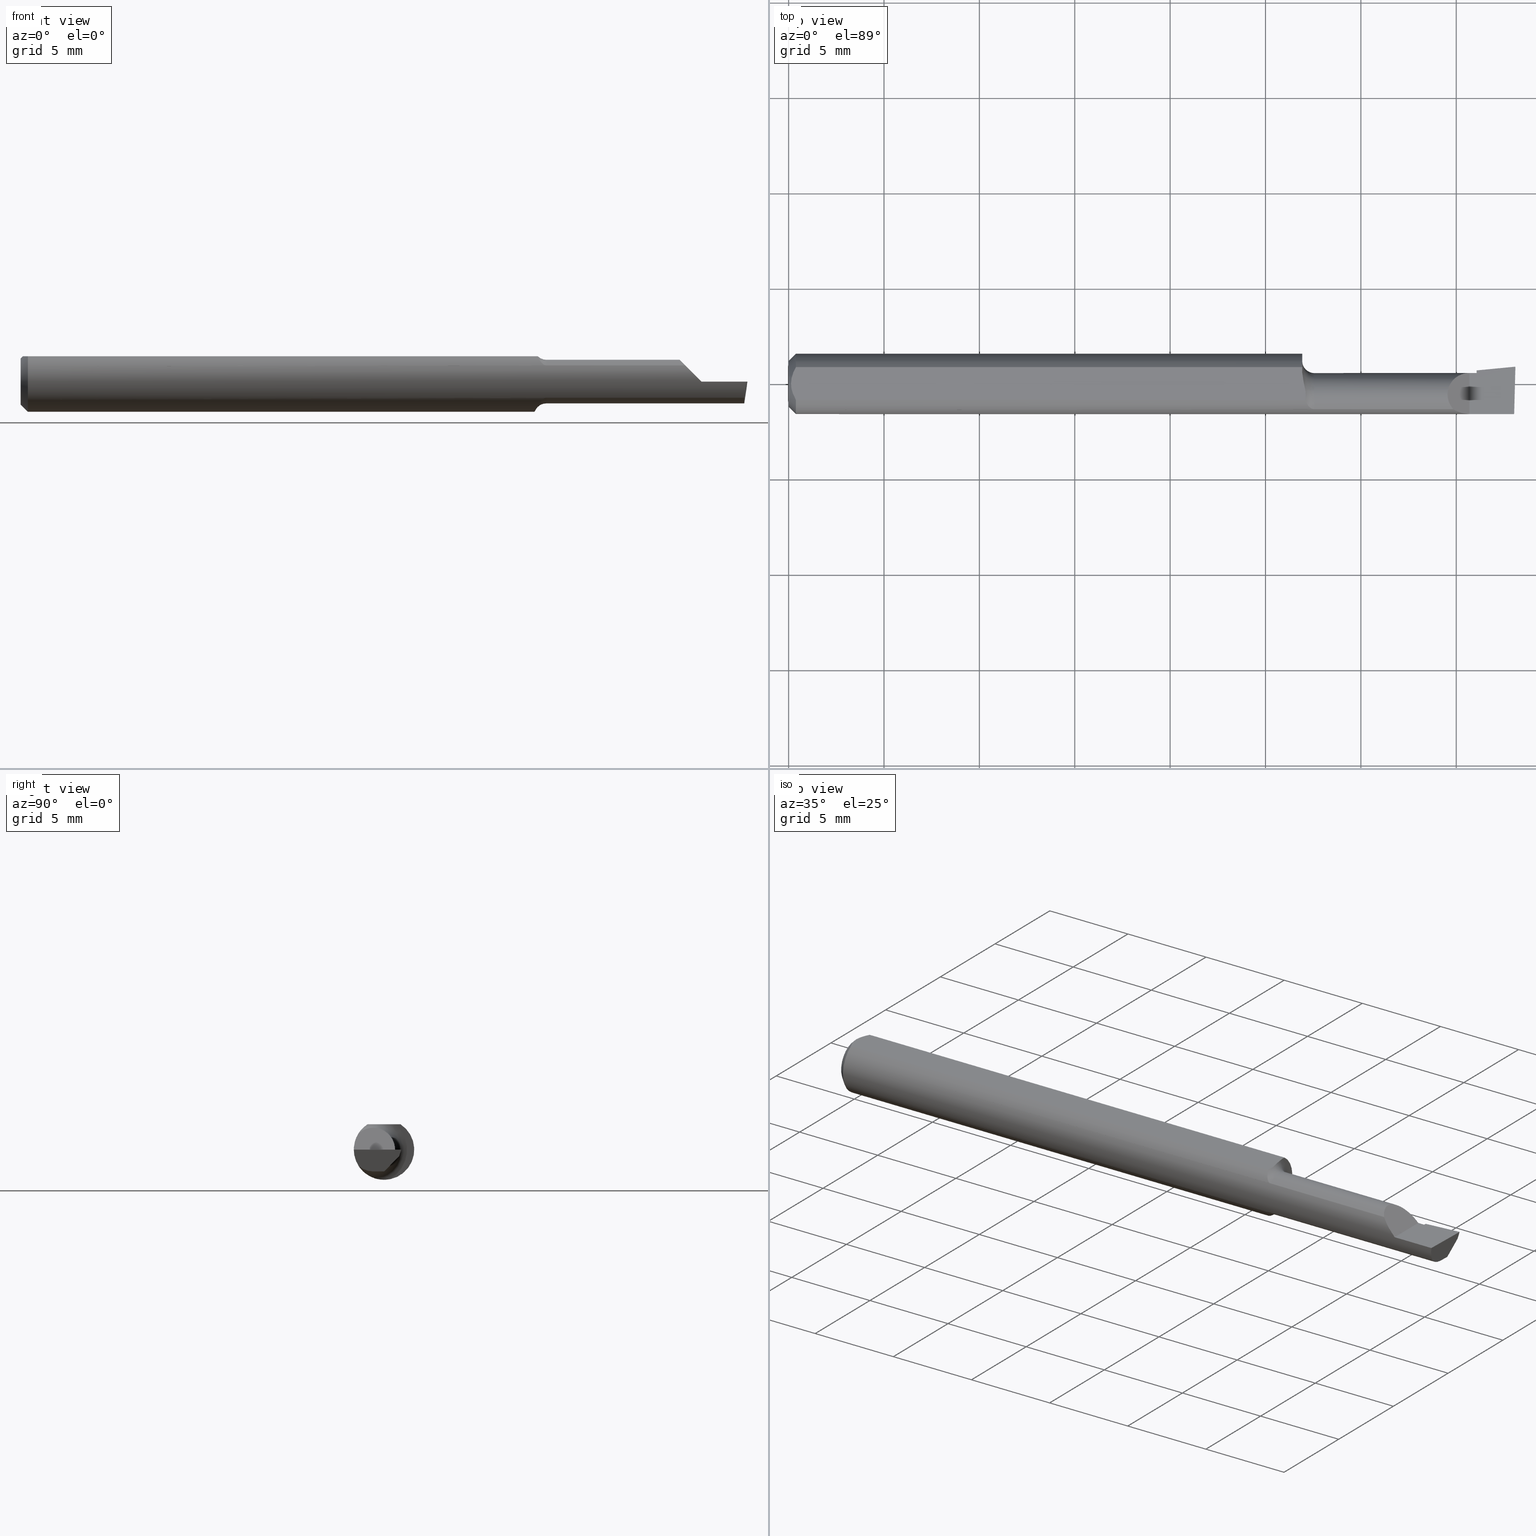
[diagram: canonical four-view strip — front | top / right | iso, engineering-drawing reading convention]
A machine part, canonical four-view strip (front | top / right | iso — engineering-drawing reading convention). The complete STEP part file that produces these views, byte-faithful:
ISO-10303-21;
HEADER;
FILE_DESCRIPTION (( 'STEP AP214' ),
    '1' );
FILE_NAME ('B100400.STEP',
    '2019-07-25T17:05:31',
    ( '' ),
    ( '' ),
    'SwSTEP 2.0',
    'SolidWorks 2018',
    '' );
FILE_SCHEMA (( 'AUTOMOTIVE_DESIGN' ));
ENDSEC;

DATA;
#1 = ORIENTED_EDGE ( 'NONE', *, *, #10, .T. ) ;
#2 = PRODUCT_CONTEXT ( 'NONE', #526, 'mechanical' ) ;
#3 = CARTESIAN_POINT ( 'NONE',  ( 1.060000000000000275, 0.01155624999999986177, -0.06126969549408177451 ) ) ;
#4 = CARTESIAN_POINT ( 'NONE',  ( 1.492946566646605078, -0.02239999999999999630, -0.04504999999999998589 ) ) ;
#5 = CARTESIAN_POINT ( 'NONE',  ( 1.420000000000000151, -0.006476468102432248429, -0.04504999999999998589 ) ) ;
#6 = CARTESIAN_POINT ( 'NONE',  ( 1.083240954672475720, -0.05267366071428582208, -0.03336177403790606399 ) ) ;
#7 = DIRECTION ( 'NONE',  ( 1.000000000000000000, 0.0000000000000000000, 0.0000000000000000000 ) ) ;
#8 = CARTESIAN_POINT ( 'NONE',  ( 0.006057557792978140489, -0.01187252718384441616, 0.05234999999999998682 ) ) ;
#9 = ORIENTED_EDGE ( 'NONE', *, *, #261, .F. ) ;
#10 = EDGE_CURVE ( 'NONE', #38, #589, #593, .T. ) ;
#11 = VERTEX_POINT ( 'NONE', #4 ) ;
#12 =( NAMED_UNIT ( * ) SI_UNIT ( $, .STERADIAN. ) SOLID_ANGLE_UNIT ( ) );
#13 =( BOUNDED_CURVE ( )  B_SPLINE_CURVE ( 3, ( #307, #83, #355, #220 ),
 .UNSPECIFIED., .F., .T. ) 
 B_SPLINE_CURVE_WITH_KNOTS ( ( 4, 4 ),
 ( 5.756326750816668003, 6.493234751459600496 ),
 .UNSPECIFIED. ) 
 CURVE ( )  GEOMETRIC_REPRESENTATION_ITEM ( )  RATIONAL_B_SPLINE_CURVE ( ( 1.000000000000000000, 0.9552568590268901705, 0.9552568590268901705, 1.000000000000000000 ) ) 
 REPRESENTATION_ITEM ( '' )  );
#14 = ORIENTED_EDGE ( 'NONE', *, *, #493, .F. ) ;
#15 = DIRECTION ( 'NONE',  ( -1.000000000000000000, -5.691349986800549142E-18, -0.0000000000000000000 ) ) ;
#16 = CARTESIAN_POINT ( 'NONE',  ( 1.420000000000000151, 0.02794687614419681318, 0.0000000000000000000 ) ) ;
#17 = DIRECTION ( 'NONE',  ( 0.0000000000000000000, -1.000000000000000000, 0.0000000000000000000 ) ) ;
#18 = SHAPE_DEFINITION_REPRESENTATION ( #604, #591 ) ;
#19 = VECTOR ( 'NONE', #244, 39.37007874015748854 ) ;
#20 = ORIENTED_EDGE ( 'NONE', *, *, #261, .T. ) ;
#21 = ORIENTED_EDGE ( 'NONE', *, *, #450, .F. ) ;
#22 = AXIS2_PLACEMENT_3D ( 'NONE', #312, #547, #81 ) ;
#23 = CARTESIAN_POINT ( 'NONE',  ( 1.060000000000000275, 0.0000000000000000000, 0.0000000000000000000 ) ) ;
#24 = CARTESIAN_POINT ( 'NONE',  ( 1.420000000000000151, -0.02239999999999999630, 0.0000000000000000000 ) ) ;
#25 = EDGE_CURVE ( 'NONE', #367, #113, #505, .T. ) ;
#26 = CARTESIAN_POINT ( 'NONE',  ( 1.085000000000000187, -0.02239999999999999977, 0.0000000000000000000 ) ) ;
#27 = VECTOR ( 'NONE', #481, 39.37007874015748143 ) ;
#28 = DIRECTION ( 'NONE',  ( 5.691349986800549142E-18, -1.000000000000000000, 7.598598113218357399E-17 ) ) ;
#29 = AXIS2_PLACEMENT_3D ( 'NONE', #170, #393, #266 ) ;
#30 = CIRCLE ( 'NONE', #129, 0.04734999999999965625 ) ;
#31 = ORIENTED_EDGE ( 'NONE', *, *, #576, .T. ) ;
#32 = ORIENTED_EDGE ( 'NONE', *, *, #406, .F. ) ;
#33 = CARTESIAN_POINT ( 'NONE',  ( 1.085000000000000187, -0.02239999999999999630, 0.0000000000000000000 ) ) ;
#34 = B_SPLINE_CURVE_WITH_KNOTS ( 'NONE', 3,
 ( #529, #162, #475, #378, #533, #107, #528, #62, #425, #373 ),
 .UNSPECIFIED., .F., .F.,
 ( 4, 2, 2, 2, 4 ),
 ( 3.797231421916798275E-07, 0.0004333373953855909145, 0.0006498162315072879497, 0.0007580556495681328895, 0.0008662950676289779377 ),
 .UNSPECIFIED. ) ;
#35 =( NAMED_UNIT ( * ) SI_UNIT ( $, .STERADIAN. ) SOLID_ANGLE_UNIT ( ) );
#36 = PRESENTATION_LAYER_ASSIGNMENT (  '', '', ( #558 ) ) ;
#37 = DIRECTION ( 'NONE',  ( -1.000000000000000000, -0.0000000000000000000, -0.0000000000000000000 ) ) ;
#38 = VERTEX_POINT ( 'NONE', #318 ) ;
#39 = CARTESIAN_POINT ( 'NONE',  ( 1.420000000000000151, 0.02265000000000000346, 1.836970198721031660E-16 ) ) ;
#40 = ADVANCED_FACE ( 'NONE', ( #442 ), #330, .F. ) ;
#41 = CARTESIAN_POINT ( 'NONE',  ( 1.497433779686218935, -0.06235000000000005121, 3.231995301756471648E-19 ) ) ;
#42 = LINE ( 'NONE', #487, #77 ) ;
#43 = ORIENTED_EDGE ( 'NONE', *, *, #357, .F. ) ;
#44 = ORIENTED_EDGE ( 'NONE', *, *, #140, .T. ) ;
#45 = VERTEX_POINT ( 'NONE', #55 ) ;
#46 = CARTESIAN_POINT ( 'NONE',  ( 1.060684336333183486, 0.01400540109987310697, 0.05234999999999998682 ) ) ;
#47 = PLANE ( 'NONE',  #516 ) ;
#48 =( GEOMETRIC_REPRESENTATION_CONTEXT ( 3 ) GLOBAL_UNCERTAINTY_ASSIGNED_CONTEXT ( ( #454 ) ) GLOBAL_UNIT_ASSIGNED_CONTEXT ( ( #371, #288, #12 ) ) REPRESENTATION_CONTEXT ( 'NONE', 'WORKASPACE' ) );
#49 = CARTESIAN_POINT ( 'NONE',  ( 1.420000000000000151, -0.2500000000000000555, 9.797174393178828616E-18 ) ) ;
#50 = CARTESIAN_POINT ( 'NONE',  ( 1.405000000000000249, -0.2500000000000000555, 1.163414459189985436E-17 ) ) ;
#51 = EDGE_CURVE ( 'NONE', #38, #11, #474, .T. ) ;
#52 = FACE_OUTER_BOUND ( 'NONE', #324, .T. ) ;
#53 = FILL_AREA_STYLE_COLOUR ( '', #440 ) ;
#54 = ORIENTED_EDGE ( 'NONE', *, *, #434, .F. ) ;
#55 = CARTESIAN_POINT ( 'NONE',  ( 0.01500000000000000465, 0.0000000000000000000, -0.06235000000000000264 ) ) ;
#56 = CARTESIAN_POINT ( 'NONE',  ( 1.072612635401776870, -0.04600867268841651869, -0.04219264322731248323 ) ) ;
#57 = ORIENTED_EDGE ( 'NONE', *, *, #212, .F. ) ;
#58 = DIRECTION ( 'NONE',  ( 5.691349986800549142E-18, -1.000000000000000000, 0.0000000000000000000 ) ) ;
#59 = DIRECTION ( 'NONE',  ( -1.000000000000000000, -0.0000000000000000000, -0.0000000000000000000 ) ) ;
#60 = AXIS2_PLACEMENT_3D ( 'NONE', #16, #201, #204 ) ;
#61 = FILL_AREA_STYLE ('',( #53 ) ) ;
#62 = CARTESIAN_POINT ( 'NONE',  ( 1.082134555967766865, -0.05240678568573016449, 0.03378794548805856557 ) ) ;
#63 = LINE ( 'NONE', #49, #592 ) ;
#64 = FACE_OUTER_BOUND ( 'NONE', #193, .T. ) ;
#65 = ORIENTED_EDGE ( 'NONE', *, *, #348, .T. ) ;
#66 = DIRECTION ( 'NONE',  ( 0.0000000000000000000, 0.0000000000000000000, -1.000000000000000000 ) ) ;
#67 = DIRECTION ( 'NONE',  ( 0.7071067811865395791, 8.659560562355030233E-17, 0.7071067811865554553 ) ) ;
#68 = ORIENTED_EDGE ( 'NONE', *, *, #348, .F. ) ;
#69 = CARTESIAN_POINT ( 'NONE',  ( 2.249639673992788601E-32, -0.06234999999999999570, 1.836970198721030427E-16 ) ) ;
#70 = ORIENTED_EDGE ( 'NONE', *, *, #299, .F. ) ;
#71 = AXIS2_PLACEMENT_3D ( 'NONE', #50, #514, #232 ) ;
#72 = EDGE_LOOP ( 'NONE', ( #341, #57, #394 ) ) ;
#73 = DIRECTION ( 'NONE',  ( -0.06894566448119622548, 0.7160281025913035613, -0.6946583704589933683 ) ) ;
#74 = EDGE_CURVE ( 'NONE', #551, #455, #346, .T. ) ;
#75 = CARTESIAN_POINT ( 'NONE',  ( 0.01500000000000000465, 0.0000000000000000000, 0.0000000000000000000 ) ) ;
#76 = UNCERTAINTY_MEASURE_WITH_UNIT (LENGTH_MEASURE( 1.000000000000000082E-05 ), #449, 'distance_accuracy_value', 'NONE');
#77 = VECTOR ( 'NONE', #385, 39.37007874015748143 ) ;
#78 = DIRECTION ( 'NONE',  ( 5.691349986800549142E-18, -1.000000000000000000, 0.0000000000000000000 ) ) ;
#79 = ORIENTED_EDGE ( 'NONE', *, *, #398, .T. ) ;
#80 = AXIS2_PLACEMENT_3D ( 'NONE', #23, #197, #430 ) ;
#81 = DIRECTION ( 'NONE',  ( 0.0000000000000000000, -1.000000000000000000, 4.268512490100411895E-17 ) ) ;
#82 = AXIS2_PLACEMENT_3D ( 'NONE', #33, #268, #78 ) ;
#83 = CARTESIAN_POINT ( 'NONE',  ( 1.492874371667014088, -0.04428776192107811843, -0.04097143695815294584 ) ) ;
#84 = VERTEX_POINT ( 'NONE', #518 ) ;
#85 = ORIENTED_EDGE ( 'NONE', *, *, #277, .F. ) ;
#86 = SURFACE_SIDE_STYLE ('',( #231 ) ) ;
#87 = DIRECTION ( 'NONE',  ( 0.0000000000000000000, 0.0000000000000000000, 1.000000000000000000 ) ) ;
#88 = CIRCLE ( 'NONE', #383, 0.06235000000000000264 ) ;
#89 = PRODUCT ( 'B100400', 'B100400', '', ( #2 ) ) ;
#90 = ORIENTED_EDGE ( 'NONE', *, *, #357, .T. ) ;
#91 = ADVANCED_FACE ( 'NONE', ( #543 ), #280, .F. ) ;
#92 = CARTESIAN_POINT ( 'NONE',  ( 1.067029704074272445, -0.01497150789875727889, 0.05235000000000000764 ) ) ;
#93 = VERTEX_POINT ( 'NONE', #523 ) ;
#94 = CLOSED_SHELL ( 'NONE', ( #414, #187, #515, #403, #601, #314, #409, #91, #137, #276, #418, #281, #504, #451, #317, #40, #559 ) ) ;
#95 = PRODUCT_DEFINITION ( 'UNKNOWN', '', #233, #527 ) ;
#96 = DIRECTION ( 'NONE',  ( -1.000000000000000000, -5.691349986800549142E-18, -0.0000000000000000000 ) ) ;
#97 = CARTESIAN_POINT ( 'NONE',  ( 1.509953961983671933, 0.03660845752520203861, 0.0000000000000000000 ) ) ;
#98 = DIRECTION ( 'NONE',  ( -0.9953961983671800740, -0.09584575252021031166, 0.0000000000000000000 ) ) ;
#99 = DIRECTION ( 'NONE',  ( 0.1219104985252536522, 0.0000000000000000000, 0.9925410975618713660 ) ) ;
#100 = FACE_OUTER_BOUND ( 'NONE', #596, .T. ) ;
#101 = ORIENTED_EDGE ( 'NONE', *, *, #376, .F. ) ;
#102 = ORIENTED_EDGE ( 'NONE', *, *, #123, .F. ) ;
#103 = DIMENSIONAL_EXPONENTS ( 1.000000000000000000, 0.0000000000000000000, 0.0000000000000000000, 0.0000000000000000000, 0.0000000000000000000, 0.0000000000000000000, 0.0000000000000000000 ) ;
#104 = AXIS2_PLACEMENT_3D ( 'NONE', #512, #96, #279 ) ;
#105 = CARTESIAN_POINT ( 'NONE',  ( 0.004999999999989931769, 7.898418181085889318E-16, 0.05235000000000000070 ) ) ;
#106 = CARTESIAN_POINT ( 'NONE',  ( 1.068132745576696019, -0.03943215935316551901, -0.04868886658133501216 ) ) ;
#107 = CARTESIAN_POINT ( 'NONE',  ( 1.078587721903973895, -0.05102224570557683386, 0.03585204334870999848 ) ) ;
#108 = EDGE_CURVE ( 'NONE', #353, #258, #127, .T. ) ;
#109 = PRESENTATION_STYLE_ASSIGNMENT (( #445 ) ) ;
#110 = CARTESIAN_POINT ( 'NONE',  ( 0.009669996313769784607, 0.02323004575534281385, 0.05234999999999998682 ) ) ;
#111 = LINE ( 'NONE', #293, #352 ) ;
#112 = CARTESIAN_POINT ( 'NONE',  ( 1.492525117049605665, -0.2498042633013223268, 9.154091479201563202E-19 ) ) ;
#113 = VERTEX_POINT ( 'NONE', #3 ) ;
#114 = DIRECTION ( 'NONE',  ( 0.9953961983671786307, 0.09584575252022466130, -1.219008768213809603E-16 ) ) ;
#115 = AXIS2_PLACEMENT_3D ( 'NONE', #541, #73, #584 ) ;
#116 = CARTESIAN_POINT ( 'NONE',  ( 1.420000000000000151, -0.02239999999999999630, -0.04504999999999998589 ) ) ;
#117 = CARTESIAN_POINT ( 'NONE',  ( 1.500000000000000222, -0.02239999999999999630, -0.04504999999999998589 ) ) ;
#118 = UNCERTAINTY_MEASURE_WITH_UNIT (LENGTH_MEASURE( 1.000000000000000082E-05 ), #156, 'distance_accuracy_value', 'NONE');
#119 = AXIS2_PLACEMENT_3D ( 'NONE', #498, #224, #134 ) ;
#120 = VERTEX_POINT ( 'NONE', #145 ) ;
#121 = DIRECTION ( 'NONE',  ( 0.0000000000000000000, 0.0000000000000000000, -1.000000000000000000 ) ) ;
#122 = DIRECTION ( 'NONE',  ( 3.962974135542377331E-18, -0.6963153109074924352, -0.7177360153954949196 ) ) ;
#123 = EDGE_CURVE ( 'NONE', #191, #93, #30, .T. ) ;
#124 = CARTESIAN_POINT ( 'NONE',  ( 1.060000000000000275, 0.1123499999999999915, 0.05234999999999998682 ) ) ;
#125 = EDGE_CURVE ( 'NONE', #438, #422, #265, .T. ) ;
#126 = CARTESIAN_POINT ( 'NONE',  ( 1.405000000000000249, 0.02264999999999992714, 1.163414459189985436E-17 ) ) ;
#127 =( BOUNDED_CURVE ( )  B_SPLINE_CURVE ( 3, ( #563, #283, #147, #323 ),
 .UNSPECIFIED., .F., .T. ) 
 B_SPLINE_CURVE_WITH_KNOTS ( ( 4, 4 ),
 ( 5.546277306536651963, 7.853981633974482790 ),
 .UNSPECIFIED. ) 
 CURVE ( )  GEOMETRIC_REPRESENTATION_ITEM ( )  RATIONAL_B_SPLINE_CURVE ( ( 1.000000000000000000, 0.6033122017619988453, 0.6033122017619988453, 1.000000000000000000 ) ) 
 REPRESENTATION_ITEM ( '' )  );
#128 = ORIENTED_EDGE ( 'NONE', *, *, #199, .T. ) ;
#129 = AXIS2_PLACEMENT_3D ( 'NONE', #561, #59, #150 ) ;
#130 = EDGE_CURVE ( 'NONE', #84, #120, #564, .T. ) ;
#131 = FACE_OUTER_BOUND ( 'NONE', #405, .T. ) ;
#132 = VECTOR ( 'NONE', #166, 39.37007874015748143 ) ;
#133 = ORIENTED_EDGE ( 'NONE', *, *, #496, .T. ) ;
#134 = DIRECTION ( 'NONE',  ( -1.000000000000000000, 0.0000000000000000000, 1.224646799147353947E-16 ) ) ;
#135 = CARTESIAN_POINT ( 'NONE',  ( 1.060000000000000275, -0.02239999999999999977, 0.0000000000000000000 ) ) ;
#136 = CARTESIAN_POINT ( 'NONE',  ( 1.500188977433808635, 0.03611059946466778359, 0.001440373173037835797 ) ) ;
#137 = ADVANCED_FACE ( 'NONE', ( #452 ), #47, .F. ) ;
#138 = CARTESIAN_POINT ( 'NONE',  ( 1.063640393495457026, 0.0002918085034138360166, 0.05234999999999998682 ) ) ;
#139 = VECTOR ( 'NONE', #497, 39.37007874015748143 ) ;
#140 = EDGE_CURVE ( 'NONE', #411, #179, #339, .T. ) ;
#141 = DIRECTION ( 'NONE',  ( 1.671023757235065686E-18, -0.2936076258024062913, -0.9559260233253795702 ) ) ;
#142 = VECTOR ( 'NONE', #416, 39.37007874015748143 ) ;
#143 = VECTOR ( 'NONE', #568, 39.37007874015748854 ) ;
#144 = ORIENTED_EDGE ( 'NONE', *, *, #496, .F. ) ;
#145 = CARTESIAN_POINT ( 'NONE',  ( 1.420000000000000151, 0.02364685013702381988, -0.01400000000000000203 ) ) ;
#146 = AXIS2_PLACEMENT_3D ( 'NONE', #97, #555, #602 ) ;
#147 = CARTESIAN_POINT ( 'NONE',  ( 1.359483931624303699, 0.02264999999999997571, 0.04551606837569584230 ) ) ;
#148 = B_SPLINE_CURVE_WITH_KNOTS ( 'NONE', 3,
 ( #270, #503, #46, #186, #181, #138, #180, #600, #228, #560, #92, #501, #605, #272 ),
 .UNSPECIFIED., .F., .F.,
 ( 4, 2, 2, 2, 2, 2, 4 ),
 ( 0.008234143088603514474, 0.008591734916881392167, 0.008770530831020331014, 0.008859928788089797835, 0.008949326745159266391, 0.009306918573437142350, 0.009664510401715018309 ),
 .UNSPECIFIED. ) ;
#149 = CARTESIAN_POINT ( 'NONE',  ( 1.405000000000000249, -0.2500000000000000555, 1.163414459189985436E-17 ) ) ;
#150 = DIRECTION ( 'NONE',  ( 0.0000000000000000000, 0.0000000000000000000, 1.000000000000000000 ) ) ;
#151 = EDGE_CURVE ( 'NONE', #11, #234, #221, .T. ) ;
#152 = APPLICATION_PROTOCOL_DEFINITION ( 'draft international standard', 'automotive_design', 1998, #526 ) ;
#153 = ORIENTED_EDGE ( 'NONE', *, *, #246, .F. ) ;
#154 = CARTESIAN_POINT ( 'NONE',  ( 1.405000000000000249, -0.06235000000000005121, 1.163414459189985436E-17 ) ) ;
#155 = AXIS2_PLACEMENT_3D ( 'NONE', #347, #302, #382 ) ;
#156 =( CONVERSION_BASED_UNIT ( 'INCH', #499 ) LENGTH_UNIT ( ) NAMED_UNIT ( #506 ) );
#157 = CARTESIAN_POINT ( 'NONE',  ( 1.500000000000000222, 0.03565000000000797392, 2.609848571056580909E-14 ) ) ;
#158 = FACE_OUTER_BOUND ( 'NONE', #291, .T. ) ;
#159 = ORIENTED_EDGE ( 'NONE', *, *, #585, .F. ) ;
#160 = ORIENTED_EDGE ( 'NONE', *, *, #376, .T. ) ;
#161 = ORIENTED_EDGE ( 'NONE', *, *, #25, .F. ) ;
#162 = CARTESIAN_POINT ( 'NONE',  ( 1.067873522747514015, -0.03849383661596392919, 0.04935695859860204232 ) ) ;
#163 = CARTESIAN_POINT ( 'NONE',  ( 1.498384822753108914, 0.03264131821163467062, -0.01250862198832606090 ) ) ;
#164 = ORIENTED_EDGE ( 'NONE', *, *, #130, .F. ) ;
#165 = DIRECTION ( 'NONE',  ( 0.0000000000000000000, -1.000000000000000000, 0.0000000000000000000 ) ) ;
#166 = DIRECTION ( 'NONE',  ( 1.000000000000000000, 5.691349986800549142E-18, 0.0000000000000000000 ) ) ;
#167 = EDGE_CURVE ( 'NONE', #477, #179, #295, .T. ) ;
#168 = DIRECTION ( 'NONE',  ( 0.0000000000000000000, 1.000000000000000000, -7.598598113218357399E-17 ) ) ;
#169 = VECTOR ( 'NONE', #308, 39.37007874015748143 ) ;
#170 = CARTESIAN_POINT ( 'NONE',  ( 0.01500000000000000465, 0.0000000000000000000, 0.0000000000000000000 ) ) ;
#171 = CIRCLE ( 'NONE', #155, 0.04734999999999965625 ) ;
#172 = ORIENTED_EDGE ( 'NONE', *, *, #299, .T. ) ;
#173 = ORIENTED_EDGE ( 'NONE', *, *, #327, .F. ) ;
#174 = DIRECTION ( 'NONE',  ( -1.000000000000000000, -5.691349986800549142E-18, -0.0000000000000000000 ) ) ;
#175 = PLANE ( 'NONE',  #22 ) ;
#176 = ORIENTED_EDGE ( 'NONE', *, *, #10, .F. ) ;
#177 = EDGE_CURVE ( 'NONE', #437, #477, #390, .T. ) ;
#178 = PLANE ( 'NONE',  #119 ) ;
#179 = VERTEX_POINT ( 'NONE', #157 ) ;
#180 = CARTESIAN_POINT ( 'NONE',  ( 1.063943373083574784, -0.0009488278625737072997, 0.05234999999999998682 ) ) ;
#181 = CARTESIAN_POINT ( 'NONE',  ( 1.062747134522028736, 0.004017454403653804990, 0.05235000000000000764 ) ) ;
#182 = CARTESIAN_POINT ( 'NONE',  ( 1.085000000000000187, -0.05267366071428583596, 0.03336177403790603624 ) ) ;
#183 = VECTOR ( 'NONE', #67, 39.37007874015748143 ) ;
#184 = ORIENTED_EDGE ( 'NONE', *, *, #391, .F. ) ;
#185 = EDGE_LOOP ( 'NONE', ( #184, #372, #21, #44 ) ) ;
#186 = CARTESIAN_POINT ( 'NONE',  ( 1.062172826817815663, 0.006508548278878137014, 0.05235000000000000070 ) ) ;
#187 = ADVANCED_FACE ( 'NONE', ( #226 ), #331, .T. ) ;
#188 =( LENGTH_UNIT ( ) NAMED_UNIT ( * ) SI_UNIT ( $, .METRE. ) );
#189 = CARTESIAN_POINT ( 'NONE',  ( 1.059999999999996056, 0.004792881695547039807, -0.06254535345742004426 ) ) ;
#190 = DIRECTION ( 'NONE',  ( -0.9922060308645520577, 0.02598182930466777507, 0.1218693434051183327 ) ) ;
#191 = VERTEX_POINT ( 'NONE', #247 ) ;
#192 = DIRECTION ( 'NONE',  ( 3.962974135542377331E-18, -0.6963153109074924352, -0.7177360153954949196 ) ) ;
#193 = EDGE_LOOP ( 'NONE', ( #575, #1, #43, #460, #173, #164 ) ) ;
#194 = CARTESIAN_POINT ( 'NONE',  ( 1.497745910775796441, 0.001009611647418858643, -0.04504999999999998589 ) ) ;
#195 = ORIENTED_EDGE ( 'NONE', *, *, #398, .F. ) ;
#196 = CARTESIAN_POINT ( 'NONE',  ( 0.01500000000000185039, -0.03386738844380016850, 0.05235000000000000070 ) ) ;
#197 = DIRECTION ( 'NONE',  ( 1.000000000000000000, 5.691349986800549142E-18, 0.0000000000000000000 ) ) ;
#198 = CARTESIAN_POINT ( 'NONE',  ( 1.081592203943254615, -0.05228879390856558396, -0.03397671269166894353 ) ) ;
#199 = EDGE_CURVE ( 'NONE', #386, #462, #34, .T. ) ;
#200 = CARTESIAN_POINT ( 'NONE',  ( 0.0000000000000000000, 0.0000000000000000000, 0.0000000000000000000 ) ) ;
#201 = DIRECTION ( 'NONE',  ( -1.000000000000000000, -5.691349986800549142E-18, 0.0000000000000000000 ) ) ;
#202 = FACE_OUTER_BOUND ( 'NONE', #565, .T. ) ;
#203 = CIRCLE ( 'NONE', #456, 0.04504999999999995813 ) ;
#204 = DIRECTION ( 'NONE',  ( 5.691349986800549142E-18, -1.000000000000000000, 0.0000000000000000000 ) ) ;
#205 = AXIS2_PLACEMENT_3D ( 'NONE', #200, #567, #7 ) ;
#206 = CARTESIAN_POINT ( 'NONE',  ( 1.393107270290912858, -0.06235000000000000264, 0.01189272970908752079 ) ) ;
#207 = AXIS2_PLACEMENT_3D ( 'NONE', #298, #253, #587 ) ;
#208 = EDGE_LOOP ( 'NONE', ( #217, #322, #538, #532, #432, #485 ) ) ;
#209 = DIRECTION ( 'NONE',  ( 1.000000000000000000, 0.0000000000000000000, 0.0000000000000000000 ) ) ;
#210 = ORIENTED_EDGE ( 'NONE', *, *, #242, .F. ) ;
#211 = VERTEX_POINT ( 'NONE', #578 ) ;
#212 = EDGE_CURVE ( 'NONE', #211, #353, #435, .T. ) ;
#213 = EDGE_CURVE ( 'NONE', #113, #311, #315, .T. ) ;
#214 = PLANE ( 'NONE',  #115 ) ;
#215 = LINE ( 'NONE', #597, #359 ) ;
#216 = VECTOR ( 'NONE', #114, 39.37007874015748854 ) ;
#217 = ORIENTED_EDGE ( 'NONE', *, *, #396, .T. ) ;
#218 = AXIS2_PLACEMENT_3D ( 'NONE', #424, #370, #58 ) ;
#219 = CARTESIAN_POINT ( 'NONE',  ( 0.01500000000000000465, 0.0000000000000000000, -0.06235000000000000264 ) ) ;
#220 = CARTESIAN_POINT ( 'NONE',  ( 1.492946566646605078, -0.02239999999999999630, -0.04504999999999998589 ) ) ;
#221 = LINE ( 'NONE', #117, #410 ) ;
#222 = ORIENTED_EDGE ( 'NONE', *, *, #213, .F. ) ;
#223 = CARTESIAN_POINT ( 'NONE',  ( 1.420000000000000151, 0.02794687614419801361, 1.835460370743176819E-16 ) ) ;
#224 = DIRECTION ( 'NONE',  ( -1.224646799147353947E-16, 0.0000000000000000000, -1.000000000000000000 ) ) ;
#225 = CYLINDRICAL_SURFACE ( 'NONE', #104, 0.04504999999999997201 ) ;
#226 = FACE_OUTER_BOUND ( 'NONE', #544, .T. ) ;
#227 = EDGE_CURVE ( 'NONE', #455, #234, #420, .T. ) ;
#228 = CARTESIAN_POINT ( 'NONE',  ( 1.064818038875745554, -0.004579228880846305041, 0.05235000000000001458 ) ) ;
#229 = DIRECTION ( 'NONE',  ( 1.000000000000000000, 5.691349986800549142E-18, 0.0000000000000000000 ) ) ;
#230 = DIMENSIONAL_EXPONENTS ( 1.000000000000000000, 0.0000000000000000000, 0.0000000000000000000, 0.0000000000000000000, 0.0000000000000000000, 0.0000000000000000000, 0.0000000000000000000 ) ;
#231 = SURFACE_STYLE_FILL_AREA ( #546 ) ;
#232 = DIRECTION ( 'NONE',  ( -0.7071067811865516806, 0.0000000000000000000, 0.7071067811865431318 ) ) ;
#233 = PRODUCT_DEFINITION_FORMATION_WITH_SPECIFIED_SOURCE ( 'ANY', '', #89, .NOT_KNOWN. ) ;
#234 = VERTEX_POINT ( 'NONE', #116 ) ;
#235 = DIRECTION ( 'NONE',  ( -1.000000000000000000, -0.0000000000000000000, -0.0000000000000000000 ) ) ;
#236 = CARTESIAN_POINT ( 'NONE',  ( 0.01218518006020415795, 0.02868529347538067639, 0.05235000000000000070 ) ) ;
#237 = DIRECTION ( 'NONE',  ( -1.000000000000000000, -5.691349986800549142E-18, 0.0000000000000000000 ) ) ;
#238 = EDGE_CURVE ( 'NONE', #437, #367, #366, .T. ) ;
#239 = CARTESIAN_POINT ( 'NONE',  ( 0.01216137397042175820, -0.02864146636719541034, 0.05235000000000000070 ) ) ;
#240 = ORIENTED_EDGE ( 'NONE', *, *, #306, .T. ) ;
#241 = CARTESIAN_POINT ( 'NONE',  ( 1.494656860756163885, -0.05903713403021957490, -0.02331472336167223977 ) ) ;
#242 = EDGE_CURVE ( 'NONE', #455, #551, #572, .T. ) ;
#243 = MECHANICAL_DESIGN_GEOMETRIC_PRESENTATION_REPRESENTATION (  '', ( #558 ), #286 ) ;
#244 = DIRECTION ( 'NONE',  ( 0.02617694830784732946, 0.9996573249755579260, -3.158139334220721443E-18 ) ) ;
#245 = CARTESIAN_POINT ( 'NONE',  ( 1.252500000000000169, -0.05267366071428577351, -0.03336177403790612644 ) ) ;
#246 = EDGE_CURVE ( 'NONE', #386, #438, #111, .T. ) ;
#247 = CARTESIAN_POINT ( 'NONE',  ( 0.0000000000000000000, 6.717187693324806899E-18, 0.04734999999999965625 ) ) ;
#248 = FACE_OUTER_BOUND ( 'NONE', #478, .T. ) ;
#249 = ORIENTED_EDGE ( 'NONE', *, *, #459, .T. ) ;
#250 = ORIENTED_EDGE ( 'NONE', *, *, #493, .T. ) ;
#251 = DIRECTION ( 'NONE',  ( -1.000000000000000000, -0.0000000000000000000, -0.0000000000000000000 ) ) ;
#252 = DIRECTION ( 'NONE',  ( 1.000000000000000000, 5.691349986800549142E-18, 0.0000000000000000000 ) ) ;
#253 = DIRECTION ( 'NONE',  ( 1.000000000000000000, 5.691349986800549142E-18, 0.0000000000000000000 ) ) ;
#254 = AXIS2_PLACEMENT_3D ( 'NONE', #24, #262, #165 ) ;
#255 = LINE ( 'NONE', #305, #139 ) ;
#256 = ORIENTED_EDGE ( 'NONE', *, *, #553, .F. ) ;
#257 = ORIENTED_EDGE ( 'NONE', *, *, #585, .T. ) ;
#258 = VERTEX_POINT ( 'NONE', #126 ) ;
#259 = AXIS2_PLACEMENT_3D ( 'NONE', #368, #190, #99 ) ;
#260 = CARTESIAN_POINT ( 'NONE',  ( 1.420000000000000151, 0.003839959974368444863, -0.03441620828959359585 ) ) ;
#261 = EDGE_CURVE ( 'NONE', #462, #367, #203, .T. ) ;
#262 = DIRECTION ( 'NONE',  ( -1.000000000000000000, -5.691349986800549142E-18, -0.0000000000000000000 ) ) ;
#263 = FACE_OUTER_BOUND ( 'NONE', #208, .T. ) ;
#264 = ORIENTED_EDGE ( 'NONE', *, *, #74, .T. ) ;
#265 = B_SPLINE_CURVE_WITH_KNOTS ( 'NONE', 3,
 ( #196, #239, #287, #8, #412, #329 ),
 .UNSPECIFIED., .F., .F.,
 ( 4, 2, 4 ),
 ( 0.002133667072902290657, 0.002585433046183636171, 0.003037199019464981685 ),
 .UNSPECIFIED. ) ;
#266 = DIRECTION ( 'NONE',  ( 0.0000000000000000000, 0.0000000000000000000, -1.000000000000000000 ) ) ;
#267 = EDGE_CURVE ( 'NONE', #93, #191, #171, .T. ) ;
#268 = DIRECTION ( 'NONE',  ( -1.000000000000000000, -5.691349986800549142E-18, -0.0000000000000000000 ) ) ;
#269 = ORIENTED_EDGE ( 'NONE', *, *, #306, .F. ) ;
#270 = CARTESIAN_POINT ( 'NONE',  ( 1.060000000000000275, 0.02414546164772667439, 0.05235000000000000070 ) ) ;
#271 = AXIS2_PLACEMENT_3D ( 'NONE', #535, #252, #300 ) ;
#272 = CARTESIAN_POINT ( 'NONE',  ( 1.066182189689074633, -0.03386738844375222074, 0.05235000000000000070 ) ) ;
#273 = STYLED_ITEM ( 'NONE', ( #570 ), #591 ) ;
#274 = CIRCLE ( 'NONE', #320, 0.06235000000000000264 ) ;
#275 = ORIENTED_EDGE ( 'NONE', *, *, #25, .T. ) ;
#276 = ADVANCED_FACE ( 'NONE', ( #100 ), #303, .T. ) ;
#277 = EDGE_CURVE ( 'NONE', #191, #422, #557, .T. ) ;
#278 = ORIENTED_EDGE ( 'NONE', *, *, #108, .T. ) ;
#279 = DIRECTION ( 'NONE',  ( 5.691349986800549913E-18, -1.000000000000000000, 0.0000000000000000000 ) ) ;
#280 = PLANE ( 'NONE',  #71 ) ;
#281 = ADVANCED_FACE ( 'NONE', ( #492 ), #480, .T. ) ;
#282 = CARTESIAN_POINT ( 'NONE',  ( 0.01500000000000000465, 0.03386738844375223462, 0.05234999999999997988 ) ) ;
#283 = CARTESIAN_POINT ( 'NONE',  ( 1.341051366671215384, -0.01896673977657555368, 0.06394863332878404638 ) ) ;
#284 = LINE ( 'NONE', #163, #536 ) ;
#285 = ORIENTED_EDGE ( 'NONE', *, *, #213, .T. ) ;
#286 =( GEOMETRIC_REPRESENTATION_CONTEXT ( 3 ) GLOBAL_UNCERTAINTY_ASSIGNED_CONTEXT ( ( #76 ) ) GLOBAL_UNIT_ASSIGNED_CONTEXT ( ( #449, #444, #35 ) ) REPRESENTATION_CONTEXT ( 'NONE', 'WORKASPACE' ) );
#287 = CARTESIAN_POINT ( 'NONE',  ( 0.009678036133109307534, -0.02325481837211496039, 0.05235000000000000070 ) ) ;
#288 =( NAMED_UNIT ( * ) PLANE_ANGLE_UNIT ( ) SI_UNIT ( $, .RADIAN. ) );
#289 = PRESENTATION_LAYER_ASSIGNMENT (  '', '', ( #273 ) ) ;
#290 = CONICAL_SURFACE ( 'NONE', #29, 0.06235000000000000264, 0.7853981633974594923 ) ;
#291 = EDGE_LOOP ( 'NONE', ( #102, #431, #31, #133, #101 ) ) ;
#292 = ORIENTED_EDGE ( 'NONE', *, *, #125, .T. ) ;
#293 = CARTESIAN_POINT ( 'NONE',  ( 0.0000000000000000000, -0.03386738844375222768, 0.05234999999999997988 ) ) ;
#294 = CARTESIAN_POINT ( 'NONE',  ( 1.060000000000000275, 0.03386738844375224156, 0.05235000000000000070 ) ) ;
#295 = LINE ( 'NONE', #112, #19 ) ;
#296 = VERTEX_POINT ( 'NONE', #583 ) ;
#297 = ORIENTED_EDGE ( 'NONE', *, *, #387, .T. ) ;
#298 = CARTESIAN_POINT ( 'NONE',  ( 1.420000000000000151, -0.02239999999999999630, 0.0000000000000000000 ) ) ;
#299 = EDGE_CURVE ( 'NONE', #511, #551, #319, .T. ) ;
#300 = DIRECTION ( 'NONE',  ( -5.691349986800549142E-18, 1.000000000000000000, 0.0000000000000000000 ) ) ;
#301 = FACE_OUTER_BOUND ( 'NONE', #531, .T. ) ;
#302 = DIRECTION ( 'NONE',  ( -1.000000000000000000, -0.0000000000000000000, -0.0000000000000000000 ) ) ;
#303 = CONICAL_SURFACE ( 'NONE', #488, 0.06235000000000000264, 0.7853981633974594923 ) ;
#304 = ORIENTED_EDGE ( 'NONE', *, *, #406, .T. ) ;
#305 = CARTESIAN_POINT ( 'NONE',  ( 1.420000000000000151, -0.02239999999999999630, -0.04504999999999998589 ) ) ;
#306 = EDGE_CURVE ( 'NONE', #258, #511, #446, .T. ) ;
#307 = CARTESIAN_POINT ( 'NONE',  ( 1.493589448587071988, -0.05267366071428577351, -0.03336177403790612644 ) ) ;
#308 = DIRECTION ( 'NONE',  ( 1.000000000000000000, 0.0000000000000000000, 0.0000000000000000000 ) ) ;
#309 = SURFACE_STYLE_FILL_AREA ( #61 ) ;
#310 = ORIENTED_EDGE ( 'NONE', *, *, #238, .F. ) ;
#311 = VERTEX_POINT ( 'NONE', #294 ) ;
#312 = CARTESIAN_POINT ( 'NONE',  ( 1.500000000000000222, -0.02239999999999999630, -0.04504999999999998589 ) ) ;
#313 = CARTESIAN_POINT ( 'NONE',  ( 0.01500000000000000465, 0.0000000000000000000, 0.0000000000000000000 ) ) ;
#314 = ADVANCED_FACE ( 'NONE', ( #52 ), #537, .F. ) ;
#315 = CIRCLE ( 'NONE', #80, 0.06235000000000000264 ) ;
#316 = EDGE_LOOP ( 'NONE', ( #360, #264 ) ) ;
#317 = ADVANCED_FACE ( 'NONE', ( #64 ), #214, .T. ) ;
#318 = CARTESIAN_POINT ( 'NONE',  ( 1.493548986703517656, 0.0006054938231418563509, -0.04504999999999999283 ) ) ;
#319 = CIRCLE ( 'NONE', #254, 0.04504999999999999283 ) ;
#320 = AXIS2_PLACEMENT_3D ( 'NONE', #358, #507, #364 ) ;
#321 = APPLICATION_PROTOCOL_DEFINITION ( 'draft international standard', 'automotive_design', 1998, #328 ) ;
#322 = ORIENTED_EDGE ( 'NONE', *, *, #51, .F. ) ;
#323 = CARTESIAN_POINT ( 'NONE',  ( 1.405000000000000249, 0.02264999999999992714, 1.163414459189985436E-17 ) ) ;
#324 = EDGE_LOOP ( 'NONE', ( #54, #68, #195, #494, #380, #153 ) ) ;
#325 = CARTESIAN_POINT ( 'NONE',  ( 1.420000000000000151, 0.02794687614419681318, 0.0000000000000000000 ) ) ;
#326 = CARTESIAN_POINT ( 'NONE',  ( 1.078775713346482146, -0.05116520334387903574, -0.03564627526859109191 ) ) ;
#327 = EDGE_CURVE ( 'NONE', #120, #551, #42, .T. ) ;
#328 = APPLICATION_CONTEXT ( 'automotive_design' ) ;
#329 = CARTESIAN_POINT ( 'NONE',  ( 0.004999999999989931769, 7.898418181085889318E-16, 0.05235000000000000070 ) ) ;
#330 = PLANE ( 'NONE',  #470 ) ;
#331 = PLANE ( 'NONE',  #60 ) ;
#332 = LINE ( 'NONE', #219, #476 ) ;
#333 = EDGE_CURVE ( 'NONE', #38, #84, #284, .T. ) ;
#334 = ORIENTED_EDGE ( 'NONE', *, *, #227, .T. ) ;
#335 = CARTESIAN_POINT ( 'NONE',  ( 1.493589448587071988, -0.05267366071428577351, -0.03336177403790612644 ) ) ;
#336 = CARTESIAN_POINT ( 'NONE',  ( 1.497433779686218935, -0.06235000000000005121, 3.231995301756471648E-19 ) ) ;
#337 = EDGE_CURVE ( 'NONE', #477, #211, #472, .T. ) ;
#338 = CARTESIAN_POINT ( 'NONE',  ( 0.8971276994979847652, -0.02239999999999999977, 7.383056331043944924E-17 ) ) ;
#339 = LINE ( 'NONE', #338, #216 ) ;
#340 = ORIENTED_EDGE ( 'NONE', *, *, #167, .T. ) ;
#341 = ORIENTED_EDGE ( 'NONE', *, *, #108, .F. ) ;
#342 = DIRECTION ( 'NONE',  ( 0.1053106618241428233, 0.6976485211320179181, 0.7086580314005261894 ) ) ;
#343 = AXIS2_PLACEMENT_3D ( 'NONE', #135, #174, #400 ) ;
#344 = CARTESIAN_POINT ( 'NONE',  ( 1.371638225962093838, -0.05267366071428578739, 0.03336177403790611951 ) ) ;
#345 = LINE ( 'NONE', #260, #571 ) ;
#346 = LINE ( 'NONE', #466, #588 ) ;
#347 = CARTESIAN_POINT ( 'NONE',  ( 0.0000000000000000000, 0.0000000000000000000, 0.0000000000000000000 ) ) ;
#348 = EDGE_CURVE ( 'NONE', #311, #296, #520, .T. ) ;
#349 = CARTESIAN_POINT ( 'NONE',  ( 0.004999999999989931769, 7.898418181085889318E-16, 0.05235000000000000070 ) ) ;
#350 = LINE ( 'NONE', #595, #169 ) ;
#351 = CARTESIAN_POINT ( 'NONE',  ( 1.066182189689074633, -0.03386738844375222074, 0.05235000000000000070 ) ) ;
#352 = VECTOR ( 'NONE', #251, 39.37007874015748143 ) ;
#353 = VERTEX_POINT ( 'NONE', #344 ) ;
#354 = ORIENTED_EDGE ( 'NONE', *, *, #238, .T. ) ;
#355 = CARTESIAN_POINT ( 'NONE',  ( 1.492650040401417133, -0.03372388044486963193, -0.04504999999999997201 ) ) ;
#356 = DIRECTION ( 'NONE',  ( 0.7071067811865395791, 0.0000000000000000000, -0.7071067811865554553 ) ) ;
#357 = EDGE_CURVE ( 'NONE', #455, #589, #345, .T. ) ;
#358 = CARTESIAN_POINT ( 'NONE',  ( 0.01500000000000000465, 0.0000000000000000000, 0.0000000000000000000 ) ) ;
#359 = VECTOR ( 'NONE', #229, 39.37007874015748143 ) ;
#360 = ORIENTED_EDGE ( 'NONE', *, *, #242, .T. ) ;
#361 = CARTESIAN_POINT ( 'NONE',  ( 1.420000000000000151, 0.01811171944543692874, -0.01970540757188761136 ) ) ;
#362 = VERTEX_POINT ( 'NONE', #395 ) ;
#363 =( GEOMETRIC_REPRESENTATION_CONTEXT ( 3 ) GLOBAL_UNCERTAINTY_ASSIGNED_CONTEXT ( ( #118 ) ) GLOBAL_UNIT_ASSIGNED_CONTEXT ( ( #156, #513, #521 ) ) REPRESENTATION_CONTEXT ( 'NONE', 'WORKASPACE' ) );
#364 = DIRECTION ( 'NONE',  ( 0.0000000000000000000, 0.0000000000000000000, 1.000000000000000000 ) ) ;
#365 = CARTESIAN_POINT ( 'NONE',  ( 1.510364203804932748, 0.03234793331252792947, -0.01400000000000000376 ) ) ;
#366 = LINE ( 'NONE', #245, #429 ) ;
#367 = VERTEX_POINT ( 'NONE', #397 ) ;
#368 = CARTESIAN_POINT ( 'NONE',  ( 1.490592351376191838, -0.04680632761517490581, -0.05901368851803156373 ) ) ;
#369 = DIRECTION ( 'NONE',  ( -0.02617694830784732946, -0.9996573249755579260, 4.246274422243625101E-17 ) ) ;
#370 = DIRECTION ( 'NONE',  ( -1.000000000000000000, -5.691349986800549142E-18, 0.0000000000000000000 ) ) ;
#371 =( CONVERSION_BASED_UNIT ( 'INCH', #408 ) LENGTH_UNIT ( ) NAMED_UNIT ( #103 ) );
#372 = ORIENTED_EDGE ( 'NONE', *, *, #130, .T. ) ;
#373 = CARTESIAN_POINT ( 'NONE',  ( 1.085000000000000187, -0.05267366071428583596, 0.03336177403790603624 ) ) ;
#374 = CARTESIAN_POINT ( 'NONE',  ( 1.077568494155622725, -0.05043275970182654888, -0.03668598949093540562 ) ) ;
#375 = CARTESIAN_POINT ( 'NONE',  ( 0.006064493299689842180, 0.01189382783781397189, 0.05235000000000000070 ) ) ;
#376 = EDGE_CURVE ( 'NONE', #93, #45, #332, .T. ) ;
#377 = CARTESIAN_POINT ( 'NONE',  ( 1.371638225962093838, -0.05267366071428578739, 0.03336177403790611951 ) ) ;
#378 = CARTESIAN_POINT ( 'NONE',  ( 1.074073837407041987, -0.04761084945882111674, 0.04033650601908232020 ) ) ;
#379 = VECTOR ( 'NONE', #495, 39.37007874015748854 ) ;
#380 = ORIENTED_EDGE ( 'NONE', *, *, #125, .F. ) ;
#381 = EDGE_LOOP ( 'NONE', ( #388, #580 ) ) ;
#382 = DIRECTION ( 'NONE',  ( 0.0000000000000000000, 0.0000000000000000000, 1.000000000000000000 ) ) ;
#383 = AXIS2_PLACEMENT_3D ( 'NONE', #313, #37, #87 ) ;
#384 = TOROIDAL_SURFACE ( 'NONE', #82, 0.07004999999999995952, 0.02500000000000000486 ) ;
#385 = DIRECTION ( 'NONE',  ( 3.962974135542377331E-18, -0.6963153109074924352, -0.7177360153954949196 ) ) ;
#386 = VERTEX_POINT ( 'NONE', #351 ) ;
#387 = EDGE_CURVE ( 'NONE', #296, #113, #490, .T. ) ;
#388 = ORIENTED_EDGE ( 'NONE', *, *, #267, .T. ) ;
#389 = DIRECTION ( 'NONE',  ( -1.000000000000000000, -5.691349986800549142E-18, -0.0000000000000000000 ) ) ;
#390 =( BOUNDED_CURVE ( )  B_SPLINE_CURVE ( 3, ( #335, #241, #574, #336 ),
 .UNSPECIFIED., .F., .F. ) 
 B_SPLINE_CURVE_WITH_KNOTS ( ( 4, 4 ),
 ( 0.7961532496683315641, 1.360746882514881850 ),
 .UNSPECIFIED. ) 
 CURVE ( )  GEOMETRIC_REPRESENTATION_ITEM ( )  RATIONAL_B_SPLINE_CURVE ( ( 1.000000000000000000, 0.9736121104788257874, 0.9736121104788257874, 1.000000000000000000 ) ) 
 REPRESENTATION_ITEM ( '' )  );
#391 = EDGE_CURVE ( 'NONE', #84, #179, #586, .T. ) ;
#392 = CARTESIAN_POINT ( 'NONE',  ( -2.563953169053420290E-19, 0.02264999999999996183, 1.836970198721030427E-16 ) ) ;
#393 = DIRECTION ( 'NONE',  ( 1.000000000000000000, 0.0000000000000000000, 0.0000000000000000000 ) ) ;
#394 = ORIENTED_EDGE ( 'NONE', *, *, #553, .T. ) ;
#395 = CARTESIAN_POINT ( 'NONE',  ( 0.01500000000000000465, 0.03386738844375223462, 0.05234999999999997988 ) ) ;
#396 = EDGE_CURVE ( 'NONE', #437, #11, #13, .T. ) ;
#397 = CARTESIAN_POINT ( 'NONE',  ( 1.085000000000000187, -0.05267366071428582208, -0.03336177403790606399 ) ) ;
#398 = EDGE_CURVE ( 'NONE', #362, #311, #350, .T. ) ;
#399 = B_SPLINE_CURVE_WITH_KNOTS ( 'NONE', 3,
 ( #105, #517, #375, #110, #236, #282 ),
 .UNSPECIFIED., .F., .F.,
 ( 4, 2, 4 ),
 ( 0.003037199019464981685, 0.003488061124369676216, 0.003938923229274370746 ),
 .UNSPECIFIED. ) ;
#400 = DIRECTION ( 'NONE',  ( 0.0000000000000000000, -1.000000000000000000, 0.0000000000000000000 ) ) ;
#401 = VECTOR ( 'NONE', #141, 39.37007874015748143 ) ;
#402 = MANIFOLD_SOLID_BREP ( 'Extrude7', #94 ) ;
#403 = ADVANCED_FACE ( 'NONE', ( #248 ), #175, .F. ) ;
#404 = ORIENTED_EDGE ( 'NONE', *, *, #450, .T. ) ;
#405 = EDGE_LOOP ( 'NONE', ( #479, #340, #582, #159, #269, #256 ) ) ;
#406 = EDGE_CURVE ( 'NONE', #234, #589, #255, .T. ) ;
#407 = CARTESIAN_POINT ( 'NONE',  ( 0.01500000000000185039, -0.03386738844380016850, 0.05235000000000000070 ) ) ;
#408 = LENGTH_MEASURE_WITH_UNIT ( LENGTH_MEASURE( 0.02539999999999999897 ), #461 );
#409 = ADVANCED_FACE ( 'NONE', ( #131 ), #178, .F. ) ;
#410 = VECTOR ( 'NONE', #525, 39.37007874015748143 ) ;
#411 = VERTEX_POINT ( 'NONE', #223 ) ;
#412 = CARTESIAN_POINT ( 'NONE',  ( 0.004999999999998879473, -0.005957634400466955450, 0.05235000000000000070 ) ) ;
#413 = ORIENTED_EDGE ( 'NONE', *, *, #396, .F. ) ;
#414 = ADVANCED_FACE ( 'NONE', ( #158 ), #290, .T. ) ;
#415 = CARTESIAN_POINT ( 'NONE',  ( 0.0000000000000000000, 0.0000000000000000000, 0.0000000000000000000 ) ) ;
#416 = DIRECTION ( 'NONE',  ( -0.0000000000000000000, 1.000000000000000000, -0.0000000000000000000 ) ) ;
#417 = CARTESIAN_POINT ( 'NONE',  ( 1.060000000000000275, 0.01155624999999986177, -0.06126969549408177451 ) ) ;
#418 = ADVANCED_FACE ( 'NONE', ( #508 ), #384, .F. ) ;
#419 = DIRECTION ( 'NONE',  ( 1.000000000000000000, 0.0000000000000000000, 0.0000000000000000000 ) ) ;
#420 = CIRCLE ( 'NONE', #428, 0.04504999999999999283 ) ;
#421 = ORIENTED_EDGE ( 'NONE', *, *, #327, .T. ) ;
#422 = VERTEX_POINT ( 'NONE', #349 ) ;
#423 = CARTESIAN_POINT ( 'NONE',  ( 1.065988988117221536, -0.03406974560157229048, -0.05264335079965579145 ) ) ;
#424 = CARTESIAN_POINT ( 'NONE',  ( 1.420000000000000151, 0.02794687614419681318, 0.0000000000000000000 ) ) ;
#425 = CARTESIAN_POINT ( 'NONE',  ( 1.083537604150741629, -0.05267366071513952114, 0.03336177403655851692 ) ) ;
#426 = SURFACE_SIDE_STYLE ('',( #309 ) ) ;
#427 = FACE_OUTER_BOUND ( 'NONE', #447, .T. ) ;
#428 = AXIS2_PLACEMENT_3D ( 'NONE', #534, #577, #17 ) ;
#429 = VECTOR ( 'NONE', #15, 39.37007874015748143 ) ;
#430 = DIRECTION ( 'NONE',  ( 0.0000000000000000000, 1.000000000000000000, 0.0000000000000000000 ) ) ;
#431 = ORIENTED_EDGE ( 'NONE', *, *, #277, .T. ) ;
#432 = ORIENTED_EDGE ( 'NONE', *, *, #167, .F. ) ;
#433 = MECHANICAL_DESIGN_GEOMETRIC_PRESENTATION_REPRESENTATION (  '', ( #273 ), #363 ) ;
#434 = EDGE_CURVE ( 'NONE', #296, #386, #148, .T. ) ;
#435 =( BOUNDED_CURVE ( )  B_SPLINE_CURVE ( 3, ( #154, #206, #579, #377 ),
 .UNSPECIFIED., .F., .T. ) 
 B_SPLINE_CURVE_WITH_KNOTS ( ( 4, 4 ),
 ( 4.712388980384689674, 5.276982613231239405 ),
 .UNSPECIFIED. ) 
 CURVE ( )  GEOMETRIC_REPRESENTATION_ITEM ( )  RATIONAL_B_SPLINE_CURVE ( ( 1.000000000000000000, 0.9736121104788257874, 0.9736121104788257874, 1.000000000000000000 ) ) 
 REPRESENTATION_ITEM ( '' )  );
#436 = CARTESIAN_POINT ( 'NONE',  ( 0.01500000000000000465, 7.635672792683746671E-18, 0.06235000000000000264 ) ) ;
#437 = VERTEX_POINT ( 'NONE', #552 ) ;
#438 = VERTEX_POINT ( 'NONE', #407 ) ;
#439 = CARTESIAN_POINT ( 'NONE',  ( 1.500000000000000222, 0.1123499999999999915, 0.05234999999999998682 ) ) ;
#440 = COLOUR_RGB ( '',0.7529411764705882248, 0.7529411764705882248, 0.7529411764705882248 ) ;
#441 = DIRECTION ( 'NONE',  ( 0.0000000000000000000, -1.000000000000000000, 0.0000000000000000000 ) ) ;
#442 = FACE_OUTER_BOUND ( 'NONE', #316, .T. ) ;
#443 = ORIENTED_EDGE ( 'NONE', *, *, #151, .F. ) ;
#444 =( NAMED_UNIT ( * ) PLANE_ANGLE_UNIT ( ) SI_UNIT ( $, .RADIAN. ) );
#445 = SURFACE_STYLE_USAGE ( .BOTH. , #86 ) ;
#446 = LINE ( 'NONE', #392, #132 ) ;
#447 = EDGE_LOOP ( 'NONE', ( #413, #354, #9, #249, #278, #240, #172, #210, #334, #443 ) ) ;
#448 = AXIS2_PLACEMENT_3D ( 'NONE', #439, #486, #168 ) ;
#449 =( CONVERSION_BASED_UNIT ( 'INCH', #598 ) LENGTH_UNIT ( ) NAMED_UNIT ( #230 ) );
#450 = EDGE_CURVE ( 'NONE', #411, #120, #556, .T. ) ;
#451 = ADVANCED_FACE ( 'NONE', ( #542 ), #457, .T. ) ;
#452 = FACE_OUTER_BOUND ( 'NONE', #381, .T. ) ;
#453 = ORIENTED_EDGE ( 'NONE', *, *, #227, .F. ) ;
#454 = UNCERTAINTY_MEASURE_WITH_UNIT (LENGTH_MEASURE( 1.000000000000000082E-05 ), #371, 'distance_accuracy_value', 'NONE');
#455 = VERTEX_POINT ( 'NONE', #554 ) ;
#456 = AXIS2_PLACEMENT_3D ( 'NONE', #26, #389, #441 ) ;
#457 = PLANE ( 'NONE',  #146 ) ;
#458 = CARTESIAN_POINT ( 'NONE',  ( 1.061648092746324767, -0.01564147840104310530, -0.06074236086770339743 ) ) ;
#459 = EDGE_CURVE ( 'NONE', #462, #353, #215, .T. ) ;
#460 = ORIENTED_EDGE ( 'NONE', *, *, #74, .F. ) ;
#461 =( LENGTH_UNIT ( ) NAMED_UNIT ( * ) SI_UNIT ( $, .METRE. ) );
#462 = VERTEX_POINT ( 'NONE', #182 ) ;
#463 = CARTESIAN_POINT ( 'NONE',  ( 1.060276440363477235, -0.002103274276245940214, -0.06268864719924564788 ) ) ;
#464 = EDGE_LOOP ( 'NONE', ( #275, #484, #599, #128, #20 ) ) ;
#465 = PLANE ( 'NONE',  #218 ) ;
#466 = CARTESIAN_POINT ( 'NONE',  ( 1.420000000000000151, 0.003839959974368444863, -0.03441620828959359585 ) ) ;
#467 = CARTESIAN_POINT ( 'NONE',  ( 0.0000000000000000000, 0.0000000000000000000, 0.0000000000000000000 ) ) ;
#468 = DIRECTION ( 'NONE',  ( 5.691349986800549142E-18, -1.000000000000000000, 0.0000000000000000000 ) ) ;
#469 = CARTESIAN_POINT ( 'NONE',  ( 1.062728993423048385, -0.02215482600002538494, -0.05866202889160988809 ) ) ;
#470 = AXIS2_PLACEMENT_3D ( 'NONE', #325, #237, #468 ) ;
#471 = SURFACE_STYLE_USAGE ( .BOTH. , #426 ) ;
#472 = LINE ( 'NONE', #69, #27 ) ;
#473 = CARTESIAN_POINT ( 'NONE',  ( 1.074327038483182450, -0.04799382633214958893, -0.03989142061000427314 ) ) ;
#474 = LINE ( 'NONE', #509, #549 ) ;
#475 = CARTESIAN_POINT ( 'NONE',  ( 1.069899083742320345, -0.04251446938472881742, 0.04588310374207918430 ) ) ;
#476 = VECTOR ( 'NONE', #356, 39.37007874015748143 ) ;
#477 = VERTEX_POINT ( 'NONE', #41 ) ;
#478 = EDGE_LOOP ( 'NONE', ( #176, #581, #545, #304 ) ) ;
#479 = ORIENTED_EDGE ( 'NONE', *, *, #337, .F. ) ;
#480 = PLANE ( 'NONE',  #271 ) ;
#481 = DIRECTION ( 'NONE',  ( -1.000000000000000000, -0.0000000000000000000, -0.0000000000000000000 ) ) ;
#482 = CYLINDRICAL_SURFACE ( 'NONE', #573, 0.06235000000000000264 ) ;
#483 = LINE ( 'NONE', #149, #142 ) ;
#484 = ORIENTED_EDGE ( 'NONE', *, *, #387, .F. ) ;
#485 = ORIENTED_EDGE ( 'NONE', *, *, #177, .F. ) ;
#486 = DIRECTION ( 'NONE',  ( 0.0000000000000000000, -7.598598113218357399E-17, -1.000000000000000000 ) ) ;
#487 = CARTESIAN_POINT ( 'NONE',  ( 1.420000000000000151, 0.003839959974368444863, -0.03441620828959359585 ) ) ;
#488 = AXIS2_PLACEMENT_3D ( 'NONE', #75, #209, #121 ) ;
#489 =( LENGTH_UNIT ( ) NAMED_UNIT ( * ) SI_UNIT ( $, .METRE. ) );
#490 = CIRCLE ( 'NONE', #343, 0.07004999999999995952 ) ;
#491 = CARTESIAN_POINT ( 'NONE',  ( 1.420000000000000151, 0.02442187865123201032, -0.01147666661066421533 ) ) ;
#492 = FACE_OUTER_BOUND ( 'NONE', #550, .T. ) ;
#493 = EDGE_CURVE ( 'NONE', #45, #438, #274, .T. ) ;
#494 = ORIENTED_EDGE ( 'NONE', *, *, #576, .F. ) ;
#495 = DIRECTION ( 'NONE',  ( 0.1240019227988992806, 0.3022330132596628971, 0.9451342385281363834 ) ) ;
#496 = EDGE_CURVE ( 'NONE', #362, #45, #88, .T. ) ;
#497 = DIRECTION ( 'NONE',  ( 0.0000000000000000000, 1.000000000000000000, -4.268512490100411895E-17 ) ) ;
#498 = CARTESIAN_POINT ( 'NONE',  ( 1.500000000000000222, -0.2500000000000000555, 0.0000000000000000000 ) ) ;
#499 = LENGTH_MEASURE_WITH_UNIT ( LENGTH_MEASURE( 0.02539999999999999897 ), #188 );
#500 = ORIENTED_EDGE ( 'NONE', *, *, #267, .F. ) ;
#501 = CARTESIAN_POINT ( 'NONE',  ( 1.067516889514667611, -0.02435447415594420989, 0.05235000000000000070 ) ) ;
#502 = ORIENTED_EDGE ( 'NONE', *, *, #212, .T. ) ;
#503 = CARTESIAN_POINT ( 'NONE',  ( 1.060000000000000275, 0.01903747135664268786, 0.05235000000000000070 ) ) ;
#504 = ADVANCED_FACE ( 'NONE', ( #427 ), #225, .T. ) ;
#505 = B_SPLINE_CURVE_WITH_KNOTS ( 'NONE', 3,
 ( #519, #6, #198, #326, #374, #473, #56, #106, #423, #469, #458, #463, #189, #417 ),
 .UNSPECIFIED., .F., .F.,
 ( 4, 2, 2, 2, 2, 2, 4 ),
 ( 1.960001601931791046E-07, 0.0001315703184465652758, 0.0002629446367329374076, 0.0005256932733056817256, 0.001051190546451170795, 0.001576687819596659648, 0.002102185092742148934 ),
 .UNSPECIFIED. ) ;
#506 = DIMENSIONAL_EXPONENTS ( 1.000000000000000000, 0.0000000000000000000, 0.0000000000000000000, 0.0000000000000000000, 0.0000000000000000000, 0.0000000000000000000, 0.0000000000000000000 ) ;
#507 = DIRECTION ( 'NONE',  ( -1.000000000000000000, -0.0000000000000000000, -0.0000000000000000000 ) ) ;
#508 = FACE_OUTER_BOUND ( 'NONE', #464, .T. ) ;
#509 = CARTESIAN_POINT ( 'NONE',  ( 1.492951399889240971, -0.02221542591032727235, -0.04504999999999998589 ) ) ;
#510 = VECTOR ( 'NONE', #98, 39.37007874015748854 ) ;
#511 = VERTEX_POINT ( 'NONE', #39 ) ;
#512 = CARTESIAN_POINT ( 'NONE',  ( 0.0000000000000000000, -0.02240000000000000324, 0.0000000000000000000 ) ) ;
#513 =( NAMED_UNIT ( * ) PLANE_ANGLE_UNIT ( ) SI_UNIT ( $, .RADIAN. ) );
#514 = DIRECTION ( 'NONE',  ( -0.7071067811865432429, 0.0000000000000000000, -0.7071067811865517916 ) ) ;
#515 = ADVANCED_FACE ( 'NONE', ( #301 ), #465, .T. ) ;
#516 = AXIS2_PLACEMENT_3D ( 'NONE', #415, #419, #66 ) ;
#517 = CARTESIAN_POINT ( 'NONE',  ( 0.004999999999999268051, 0.005945714695019511074, 0.05235000000000000070 ) ) ;
#518 = CARTESIAN_POINT ( 'NONE',  ( 1.498163195397628211, 0.03117310982593858235, -0.01400000000000000203 ) ) ;
#519 = CARTESIAN_POINT ( 'NONE',  ( 1.085000000000000187, -0.05267366071428582208, -0.03336177403790606399 ) ) ;
#520 = LINE ( 'NONE', #124, #603 ) ;
#521 =( NAMED_UNIT ( * ) SI_UNIT ( $, .STERADIAN. ) SOLID_ANGLE_UNIT ( ) );
#522 = ORIENTED_EDGE ( 'NONE', *, *, #337, .T. ) ;
#523 = CARTESIAN_POINT ( 'NONE',  ( 0.0000000000000000000, 0.0000000000000000000, -0.04734999999999965625 ) ) ;
#524 = ORIENTED_EDGE ( 'NONE', *, *, #199, .F. ) ;
#525 = DIRECTION ( 'NONE',  ( -1.000000000000000000, 5.691349986800548372E-18, -0.0000000000000000000 ) ) ;
#526 = APPLICATION_CONTEXT ( 'automotive_design' ) ;
#527 = PRODUCT_DEFINITION_CONTEXT ( 'detailed design', #328, 'design' ) ;
#528 = CARTESIAN_POINT ( 'NONE',  ( 1.079654899318486461, -0.05157034440792586383, 0.03505133412385297992 ) ) ;
#529 = CARTESIAN_POINT ( 'NONE',  ( 1.066182189689074633, -0.03386738844375222074, 0.05235000000000000070 ) ) ;
#530 = COLOUR_RGB ( '',0.7529411764705882248, 0.7529411764705882248, 0.7529411764705882248 ) ;
#531 = EDGE_LOOP ( 'NONE', ( #453, #90, #32 ) ) ;
#532 = ORIENTED_EDGE ( 'NONE', *, *, #391, .T. ) ;
#533 = CARTESIAN_POINT ( 'NONE',  ( 1.075661082963681459, -0.04915643512136035759, 0.03841395140597855112 ) ) ;
#534 = CARTESIAN_POINT ( 'NONE',  ( 1.420000000000000151, -0.02239999999999999630, 0.0000000000000000000 ) ) ;
#535 = CARTESIAN_POINT ( 'NONE',  ( 1.060000000000000275, 0.04764999999999996322, 0.0000000000000000000 ) ) ;
#536 = VECTOR ( 'NONE', #342, 39.37007874015748854 ) ;
#537 = PLANE ( 'NONE',  #448 ) ;
#538 = ORIENTED_EDGE ( 'NONE', *, *, #333, .T. ) ;
#539 = ORIENTED_EDGE ( 'NONE', *, *, #177, .T. ) ;
#540 = ORIENTED_EDGE ( 'NONE', *, *, #459, .F. ) ;
#541 = CARTESIAN_POINT ( 'NONE',  ( 1.510364203804932748, 0.03234793331252792947, -0.01400000000000000376 ) ) ;
#542 = FACE_OUTER_BOUND ( 'NONE', #185, .T. ) ;
#543 = FACE_OUTER_BOUND ( 'NONE', #72, .T. ) ;
#544 = EDGE_LOOP ( 'NONE', ( #257, #404, #421, #70 ) ) ;
#545 = ORIENTED_EDGE ( 'NONE', *, *, #151, .T. ) ;
#546 = FILL_AREA_STYLE ('',( #590 ) ) ;
#547 = DIRECTION ( 'NONE',  ( 2.429359850419095604E-34, 4.268512490100411895E-17, 1.000000000000000000 ) ) ;
#548 = PRODUCT_RELATED_PRODUCT_CATEGORY ( 'part', '', ( #89 ) ) ;
#549 = VECTOR ( 'NONE', #369, 39.37007874015748854 ) ;
#550 = EDGE_LOOP ( 'NONE', ( #285, #65, #297 ) ) ;
#551 = VERTEX_POINT ( 'NONE', #361 ) ;
#552 = CARTESIAN_POINT ( 'NONE',  ( 1.493589448587071988, -0.05267366071428577351, -0.03336177403790612644 ) ) ;
#553 = EDGE_CURVE ( 'NONE', #211, #258, #483, .T. ) ;
#554 = CARTESIAN_POINT ( 'NONE',  ( 1.420000000000000151, -0.001476535193823069530, -0.03989625446711349277 ) ) ;
#555 = DIRECTION ( 'NONE',  ( -0.09165774897393340337, 0.9519021185660613282, -0.2923717047227305521 ) ) ;
#556 = LINE ( 'NONE', #491, #401 ) ;
#557 = LINE ( 'NONE', #436, #183 ) ;
#558 = STYLED_ITEM ( 'NONE', ( #109 ), #402 ) ;
#559 = ADVANCED_FACE ( 'NONE', ( #263 ), #566, .F. ) ;
#560 = CARTESIAN_POINT ( 'NONE',  ( 1.066144749454604801, -0.01034308142135323058, 0.05235000000000000764 ) ) ;
#561 = CARTESIAN_POINT ( 'NONE',  ( 0.0000000000000000000, 0.0000000000000000000, 0.0000000000000000000 ) ) ;
#562 = DIRECTION ( 'NONE',  ( 0.0000000000000000000, 0.0000000000000000000, 1.000000000000000000 ) ) ;
#563 = CARTESIAN_POINT ( 'NONE',  ( 1.371638225962093838, -0.05267366071428578739, 0.03336177403790611951 ) ) ;
#564 = LINE ( 'NONE', #365, #510 ) ;
#565 = EDGE_LOOP ( 'NONE', ( #310, #539, #522, #502, #540, #524, #594, #14, #144, #79, #222, #161 ) ) ;
#566 = PLANE ( 'NONE',  #259 ) ;
#567 = DIRECTION ( 'NONE',  ( 0.0000000000000000000, 0.0000000000000000000, 1.000000000000000000 ) ) ;
#568 = DIRECTION ( 'NONE',  ( -0.9953961983671800740, -0.09584575252021028391, 2.116984158397003268E-18 ) ) ;
#569 = DIRECTION ( 'NONE',  ( -5.691349986800549142E-18, 1.000000000000000000, 6.969893544162626646E-34 ) ) ;
#570 = PRESENTATION_STYLE_ASSIGNMENT (( #471 ) ) ;
#571 = VECTOR ( 'NONE', #122, 39.37007874015748143 ) ;
#572 = CIRCLE ( 'NONE', #207, 0.04504999999999997201 ) ;
#573 = AXIS2_PLACEMENT_3D ( 'NONE', #467, #235, #562 ) ;
#574 = CARTESIAN_POINT ( 'NONE',  ( 1.495973035530413275, -0.06234999999999998183, -0.01189272970908758151 ) ) ;
#575 = ORIENTED_EDGE ( 'NONE', *, *, #333, .F. ) ;
#576 = EDGE_CURVE ( 'NONE', #422, #362, #399, .T. ) ;
#577 = DIRECTION ( 'NONE',  ( -1.000000000000000000, -5.691349986800549142E-18, -0.0000000000000000000 ) ) ;
#578 = CARTESIAN_POINT ( 'NONE',  ( 1.405000000000000249, -0.06235000000000005121, 1.163414459189985436E-17 ) ) ;
#579 = CARTESIAN_POINT ( 'NONE',  ( 1.381685276638327631, -0.05903713403021959572, 0.02331472336167217385 ) ) ;
#580 = ORIENTED_EDGE ( 'NONE', *, *, #123, .T. ) ;
#581 = ORIENTED_EDGE ( 'NONE', *, *, #51, .T. ) ;
#582 = ORIENTED_EDGE ( 'NONE', *, *, #140, .F. ) ;
#583 = CARTESIAN_POINT ( 'NONE',  ( 1.060000000000000275, 0.02414546164772667439, 0.05235000000000000070 ) ) ;
#584 = DIRECTION ( 'NONE',  ( 0.0000000000000000000, 0.6963153109074924352, 0.7177360153954948085 ) ) ;
#585 = EDGE_CURVE ( 'NONE', #511, #411, #63, .T. ) ;
#586 = LINE ( 'NONE', #136, #379 ) ;
#587 = DIRECTION ( 'NONE',  ( 0.0000000000000000000, -1.000000000000000000, 1.776356839400250465E-15 ) ) ;
#588 = VECTOR ( 'NONE', #192, 39.37007874015748143 ) ;
#589 = VERTEX_POINT ( 'NONE', #5 ) ;
#590 = FILL_AREA_STYLE_COLOUR ( '', #530 ) ;
#591 = ADVANCED_BREP_SHAPE_REPRESENTATION ( 'B100400', ( #402, #205 ), #48 ) ;
#592 = VECTOR ( 'NONE', #569, 39.37007874015748143 ) ;
#593 = LINE ( 'NONE', #194, #143 ) ;
#594 = ORIENTED_EDGE ( 'NONE', *, *, #246, .T. ) ;
#595 = CARTESIAN_POINT ( 'NONE',  ( 0.0000000000000000000, 0.03386738844375223462, 0.05234999999999997988 ) ) ;
#596 = EDGE_LOOP ( 'NONE', ( #85, #500, #160, #250, #292 ) ) ;
#597 = CARTESIAN_POINT ( 'NONE',  ( 1.252500000000000169, -0.05267366071428577351, 0.03336177403790612644 ) ) ;
#598 = LENGTH_MEASURE_WITH_UNIT ( LENGTH_MEASURE( 0.02539999999999999897 ), #489 );
#599 = ORIENTED_EDGE ( 'NONE', *, *, #434, .T. ) ;
#600 = CARTESIAN_POINT ( 'NONE',  ( 1.064543615195409521, -0.003431463083333101752, 0.05235000000000000764 ) ) ;
#601 = ADVANCED_FACE ( 'NONE', ( #202 ), #482, .T. ) ;
#602 = DIRECTION ( 'NONE',  ( 0.0000000000000000000, 0.2936076258024062913, 0.9559260233253795702 ) ) ;
#603 = VECTOR ( 'NONE', #28, 39.37007874015748143 ) ;
#604 = PRODUCT_DEFINITION_SHAPE ( 'NONE', 'NONE',  #95 ) ;
#605 = CARTESIAN_POINT ( 'NONE',  ( 1.067065763150419899, -0.02914627190158987358, 0.05234999999999998682 ) ) ;
ENDSEC;
END-ISO-10303-21;
